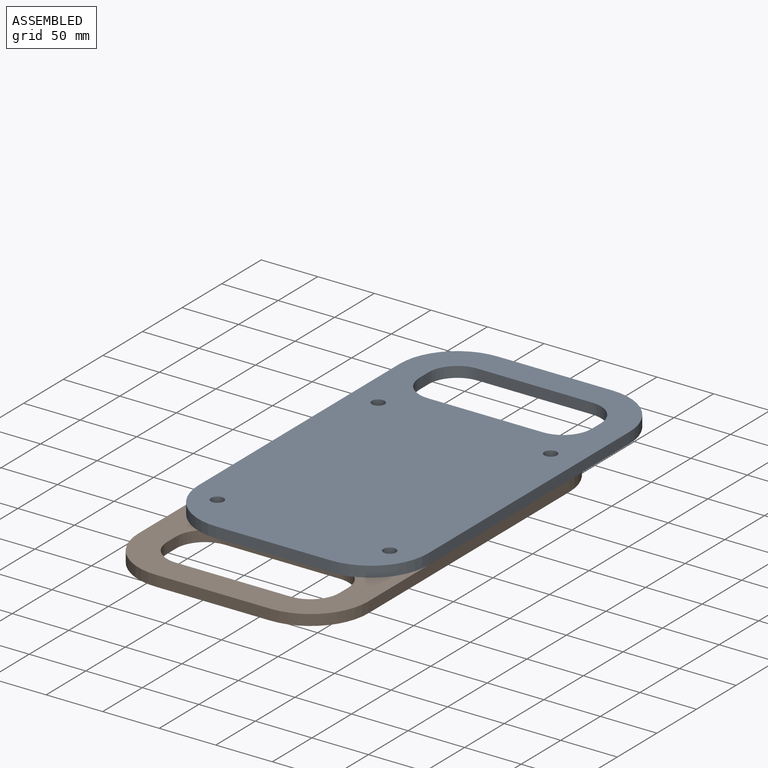
[diagram: assembled view]
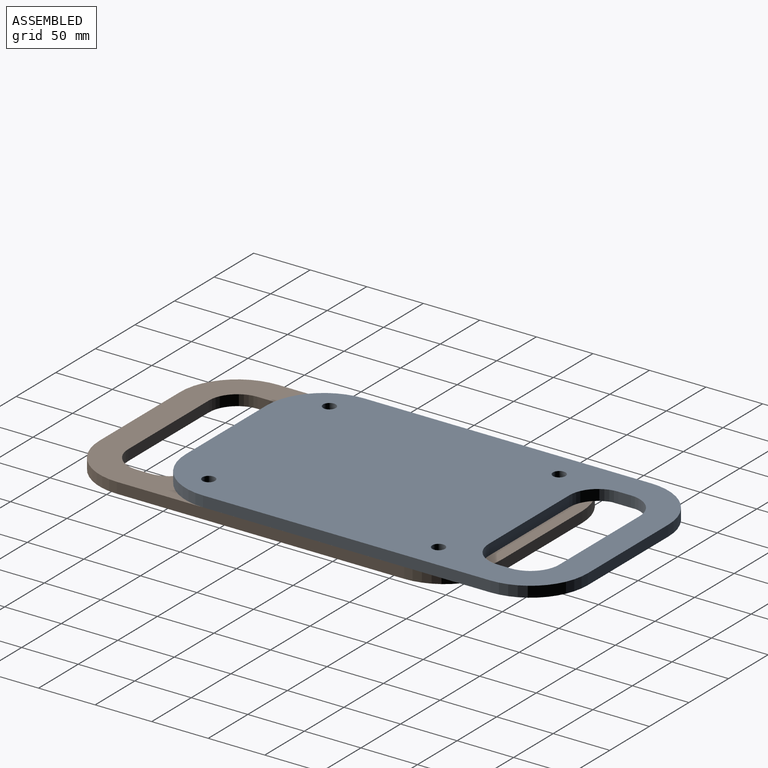
[diagram: assembled view, second angle]
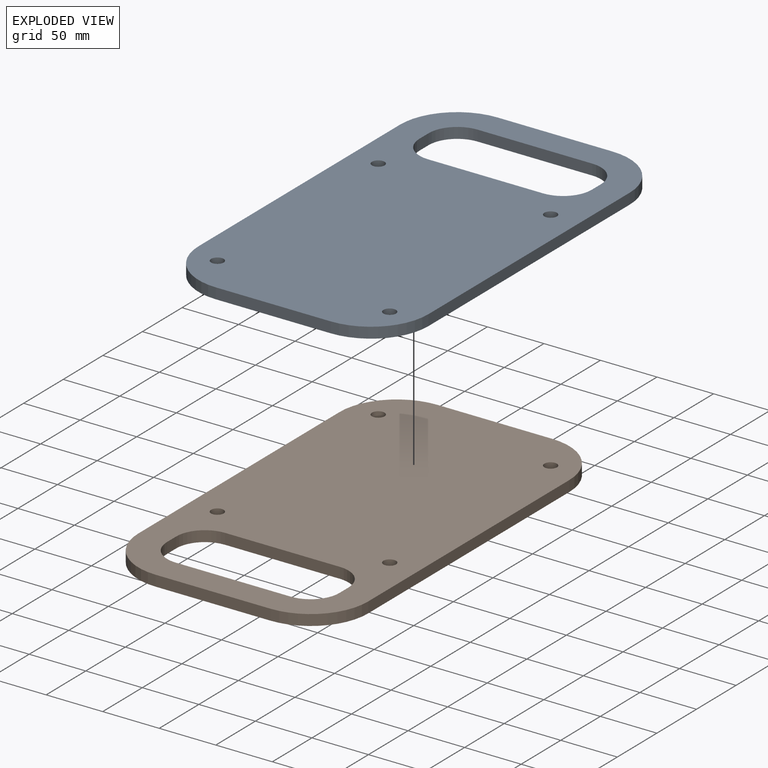
[diagram: exploded view]
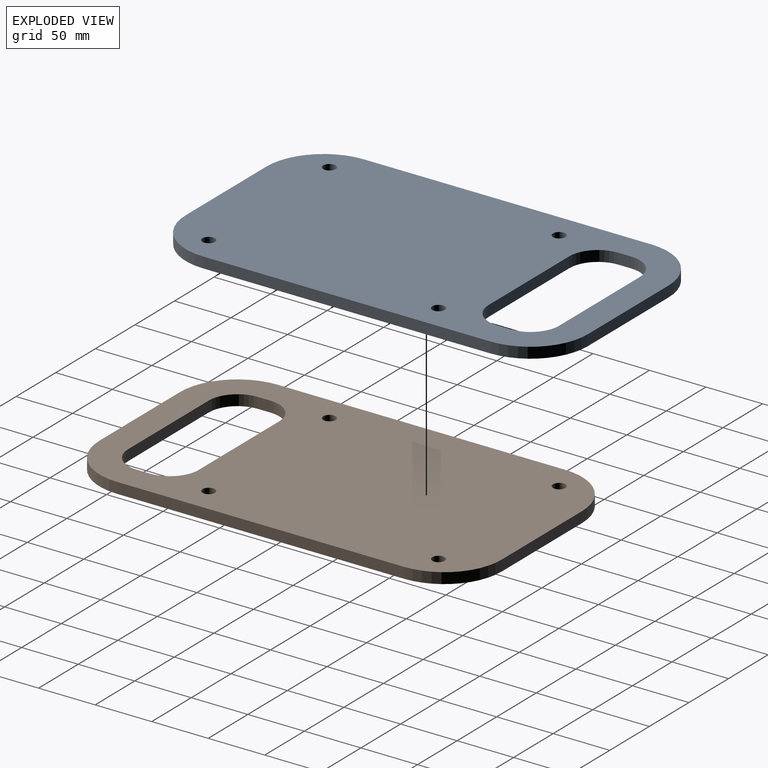
[diagram: exploded view, second angle]
ASSEMBLY  parts=2 mates=2
PART A: 22 faces, bbox 203.2x355.6x9.5 mm
  f0: plane 355.6x203.2mm, normal (0,0,1), area 60724.7mm2, adj f2,f3,f4,f5,f6,f7,f8,f9
  f1: plane 355.6x203.2mm, normal (0,0,-1), area 60724.7mm2, adj f2,f3,f4,f5,f6,f7,f8,f9
  f2: plane 254x9.53mm, normal (1,0,0), area 2419.3mm2, adj f0,f1,f10,f13
  f3: plane 101.6x9.53mm, normal (0,1,0), area 967.7mm2, adj f0,f1,f12,f13
  f4: plane 254x9.53mm, normal (-1,0,0), area 2419.3mm2, adj f0,f1,f11,f12
  f5: plane 101.6x9.53mm, normal (0,-1,0), area 967.7mm2, adj f0,f1,f10,f11
  f6: cylinder r=5.56mm len=11.11mm, axis (0,0,-1), area 332.5mm2, adj f0,f1
  f7: cylinder r=5.56mm len=11.11mm, axis (0,0,-1), area 332.5mm2, adj f0,f1
  f8: cylinder r=5.56mm len=11.11mm, axis (0,0,-1), area 332.5mm2, adj f0,f1
  f9: cylinder r=5.56mm len=11.11mm, axis (0,0,-1), area 332.5mm2, adj f0,f1
  f10: cylinder r=50.8mm len=50.8mm, axis (0,0,-1), area 760.1mm2, adj f0,f1,f2,f5
  f11: cylinder r=50.8mm len=50.8mm, axis (0,0,-1), area 760.1mm2, adj f0,f1,f4,f5
  f12: cylinder r=50.8mm len=50.8mm, axis (0,0,-1), area 760.1mm2, adj f0,f1,f3,f4
  f13: cylinder r=50.8mm len=50.8mm, axis (0,0,-1), area 760.1mm2, adj f0,f1,f2,f3
  f14: plane 11.43x9.53mm, normal (1,0,0), area 108.9mm2, adj f0,f1,f15,f21
  f15: cylinder r=25.4mm len=25.4mm, axis (0,0,-1), area 380mm2, adj f0,f1,f14,f16
  f16: plane 101.6x9.53mm, normal (0,1,0), area 967.7mm2, adj f0,f1,f15,f17
  f17: cylinder r=25.4mm len=25.4mm, axis (0,0,-1), area 380mm2, adj f0,f1,f16,f18
  f18: plane 11.43x9.53mm, normal (-1,0,0), area 108.9mm2, adj f0,f1,f17,f19
  f19: cylinder r=25.4mm len=25.4mm, axis (0,0,-1), area 380mm2, adj f0,f1,f18,f20
  f20: plane 101.6x9.53mm, normal (0,-1,0), area 967.7mm2, adj f0,f1,f19,f21
  f21: cylinder r=25.4mm len=25.4mm, axis (0,0,-1), area 380mm2, adj f0,f1,f14,f20
PART B: same geometry as A
PLACE A t=(-152.4,-203.2,9.52)mm
PLACE B rot(axis=(0,0,-1),180deg) t=(-152.4,-279.4,0)mm
MATE revolute A.f6 <-> B.f7  axis (0,0,-1) through (-76.2,-139.7,9.52)mm
MATE revolute A.f7 <-> B.f6  axis (0,0,-1) through (-228.6,-342.9,9.52)mm
